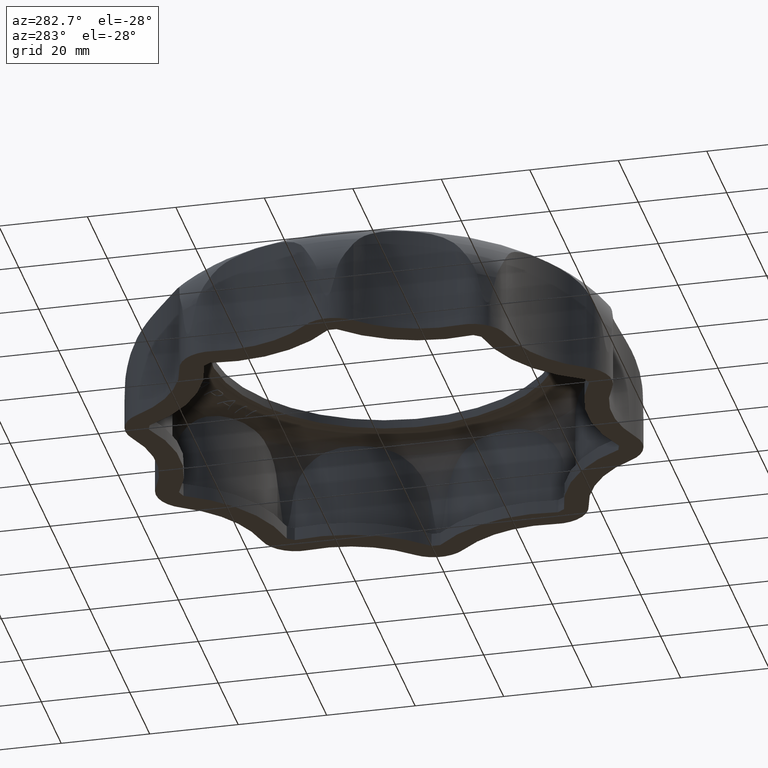
[diagram: clean part render]
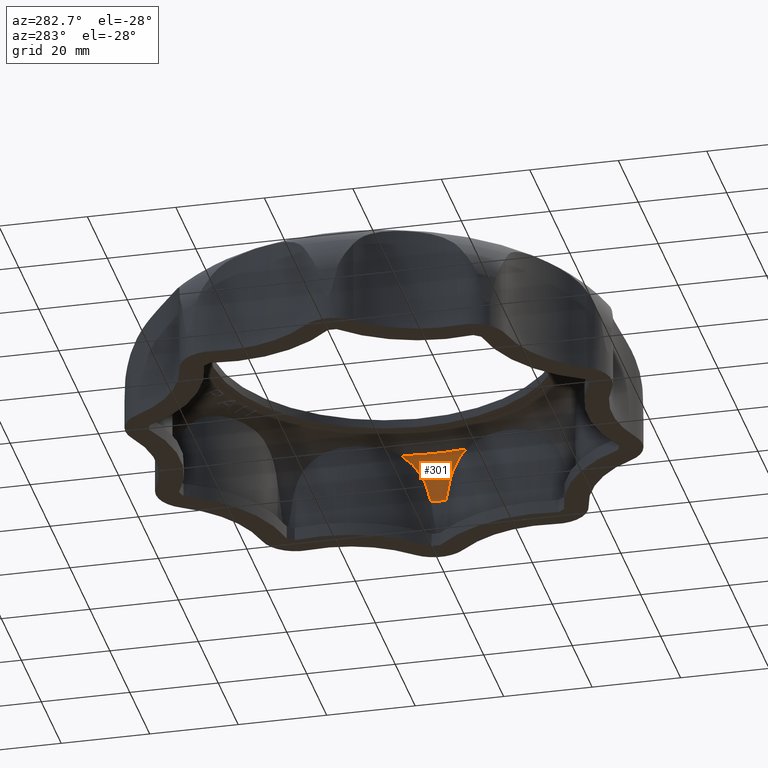
[diagram: same view with one face highlighted and labeled with its STEP entity id]
A machine part, auxiliary view. The second image highlights one B-rep face of the part: STEP entity #301.
In plain terms, the highlighted toroidal blend (fillet) surface has major radius 39.6586 mm and minor (blend) radius 15 mm.
Its self-contained STEP definition (entity closure, byte-faithful):
#301 = ADVANCED_FACE( '', ( #2695 ), #2696, .F. );
#2695 = FACE_OUTER_BOUND( '', #6995, .T. );
#2696 = TOROIDAL_SURFACE( '', #6996, 39.6585505136241, 14.9999993950186 );
#6995 = EDGE_LOOP( '', ( #15203, #15204, #15205, #15206, #15207, #15208 ) );
#6996 = AXIS2_PLACEMENT_3D( '', #15209, #15210, #15211 );
#15203 = ORIENTED_EDGE( '', *, *, #32944, .T. );
#15204 = ORIENTED_EDGE( '', *, *, #30829, .T. );
#15205 = ORIENTED_EDGE( '', *, *, #32942, .T. );
#15206 = ORIENTED_EDGE( '', *, *, #32945, .T. );
#15207 = ORIENTED_EDGE( '', *, *, #32946, .F. );
#15208 = ORIENTED_EDGE( '', *, *, #32947, .T. );
#15209 = CARTESIAN_POINT( '', ( 0.000000000000000, 0.000000000000000, -13.3517235141256 ) );
#15210 = DIRECTION( '', ( 1.89212087375327E-017, -5.82334926349610E-017, 1.00000000000000 ) );
#15211 = DIRECTION( '', ( 0.309016994374947, -0.951056516295154, -6.12303176911189E-017 ) );
#30829 = EDGE_CURVE( '', #38144, #38142, #38145, .T. );
#32942 = EDGE_CURVE( '', #38142, #42152, #42154, .T. );
#32944 = EDGE_CURVE( '', #42156, #38144, #42157, .T. );
#32945 = EDGE_CURVE( '', #42152, #42158, #42159, .T. );
#32946 = EDGE_CURVE( '', #42160, #42158, #42161, .T. );
#32947 = EDGE_CURVE( '', #42160, #42156, #42162, .T. );
#38142 = VERTEX_POINT( '', #51938 );
#38144 = VERTEX_POINT( '', #51961 );
#38145 = CIRCLE( '', #51962, 50.4068543535232 );
#42152 = VERTEX_POINT( '', #63036 );
#42154 = B_SPLINE_CURVE_WITH_KNOTS( '', 3, ( #63039, #63040, #63041, #63042, #63043, #63044, #63045, #63046, #63047, #63048, #63049, #63050, #63051, #63052 ), .UNSPECIFIED., .F., .F., ( 4, 2, 2, 2, 2, 2, 4 ), ( 4.83276726285113E-007, 0.00266775906541964, 0.00400139695976632, 0.00533503485411300, 0.00800231064280636, 0.00933594853715305, 0.0106695864314997 ), .UNSPECIFIED. );
#42156 = VERTEX_POINT( '', #63055 );
#42157 = B_SPLINE_CURVE_WITH_KNOTS( '', 3, ( #63056, #63057, #63058, #63059, #63060, #63061, #63062, #63063, #63064, #63065, #63066, #63067, #63068, #63069, #63070, #63071 ), .UNSPECIFIED., .F., .F., ( 4, 2, 2, 2, 2, 2, 2, 4 ), ( -0.0280709208807227, -0.0267382117984286, -0.0254055027161345, -0.0240727936338404, -0.0227400845515463, -0.0200746663869581, -0.0187419573046640, -0.0174092482223699 ), .UNSPECIFIED. );
#42158 = VERTEX_POINT( '', #63072 );
#42159 = B_SPLINE_CURVE_WITH_KNOTS( '', 3, ( #63073, #63074, #63075, #63076 ), .UNSPECIFIED., .F., .F., ( 4, 4 ), ( 5.99734448363926E-007, 0.00202287024008027 ), .UNSPECIFIED. );
#42160 = VERTEX_POINT( '', #63077 );
#42161 = CIRCLE( '', #63078, 54.6386110000000 );
#42162 = B_SPLINE_CURVE_WITH_KNOTS( '', 3, ( #63079, #63080, #63081, #63082 ), .UNSPECIFIED., .F., .F., ( 4, 4 ), ( 2.00044384218122E-007, 0.00202246061819082 ), .UNSPECIFIED. );
#51938 = CARTESIAN_POINT( '', ( 49.8658247983926, 7.36549271897846, -2.88874370836445 ) );
#51961 = CARTESIAN_POINT( '', ( 49.8658248911492, -7.36549209099597, -2.88874370836445 ) );
#51962 = AXIS2_PLACEMENT_3D( '', #74175, #74176, #74177 );
#63036 = CARTESIAN_POINT( '', ( 54.3648819809542, 2.16276815893542, -10.6209522511898 ) );
#63039 = CARTESIAN_POINT( '', ( 49.8658247983924, 7.36549271897827, -2.88874370836435 ) );
#63040 = CARTESIAN_POINT( '', ( 50.3281143308943, 6.68701165401273, -3.25669885823661 ) );
#63041 = CARTESIAN_POINT( '', ( 50.7937001598586, 6.06360096405892, -3.69014095399745 ) );
#63042 = CARTESIAN_POINT( '', ( 51.4779145001174, 5.21001128053163, -4.45550392247744 ) );
#63043 = CARTESIAN_POINT( '', ( 51.7035932926290, 4.93910715042651, -4.72990289303873 ) );
#63044 = CARTESIAN_POINT( '', ( 52.1463174229710, 4.42498030551874, -5.32148087070966 ) );
#63045 = CARTESIAN_POINT( '', ( 52.3599165622278, 4.18575795038652, -5.63423219473734 ) );
#63046 = CARTESIAN_POINT( '', ( 52.9684807887876, 3.52314706732014, -6.61817100569671 ) );
#63047 = CARTESIAN_POINT( '', ( 53.3334074928721, 3.15209009535560, -7.33699417642356 ) );
#63048 = CARTESIAN_POINT( '', ( 53.7975123603197, 2.69653318837018, -8.51864226597285 ) );
#63049 = CARTESIAN_POINT( '', ( 53.9366502009476, 2.56322966697262, -8.92632961759325 ) );
#63050 = CARTESIAN_POINT( '', ( 54.1780461748601, 2.33520515874141, -9.75850471582423 ) );
#63051 = CARTESIAN_POINT( '', ( 54.2809633805541, 2.23984259461598, -10.1846006505107 ) );
#63052 = CARTESIAN_POINT( '', ( 54.3648819809542, 2.16276815893544, -10.6209522511898 ) );
#63055 = CARTESIAN_POINT( '', ( 54.3648838006558, -2.16276607807733, -10.6209616251759 ) );
#63056 = CARTESIAN_POINT( '', ( 54.3648838006559, -2.16276607807435, -10.6209616251756 ) );
#63057 = CARTESIAN_POINT( '', ( 54.2818169575547, -2.23905820973232, -10.1890373540538 ) );
#63058 = CARTESIAN_POINT( '', ( 54.1780806435821, -2.33517414560739, -9.75869732154596 ) );
#63059 = CARTESIAN_POINT( '', ( 53.9369898845399, -2.56290642899356, -8.92742682337655 ) );
#63060 = CARTESIAN_POINT( '', ( 53.7996438763497, -2.69450009087806, -8.52503264776895 ) );
#63061 = CARTESIAN_POINT( '', ( 53.4943764873627, -2.99402747371349, -7.74589673288541 ) );
#63062 = CARTESIAN_POINT( '', ( 53.3264429721726, -3.16196622438816, -7.36916159243370 ) );
#63063 = CARTESIAN_POINT( '', ( 52.9623189892258, -3.53662664888572, -6.64138101818921 ) );
#63064 = CARTESIAN_POINT( '', ( 52.7658747831181, -3.74373092251917, -6.29051930069122 ) );
#63065 = CARTESIAN_POINT( '', ( 52.1544859969675, -4.40946282381913, -5.30223668150115 ) );
#63066 = CARTESIAN_POINT( '', ( 51.7129620186508, -4.91692863540736, -4.71874079142834 ) );
#63067 = CARTESIAN_POINT( '', ( 51.0218757668964, -5.77886590827511, -3.94522335829701 ) );
#63068 = CARTESIAN_POINT( '', ( 50.7890903339785, -6.08011586984417, -3.70721083085946 ) );
#63069 = CARTESIAN_POINT( '', ( 50.3259072995590, -6.70495365088411, -3.27047377318425 ) );
#63070 = CARTESIAN_POINT( '', ( 50.0948800218770, -7.02931843074663, -3.07105806319904 ) );
#63071 = CARTESIAN_POINT( '', ( 49.8658248911493, -7.36549209099604, -2.88874370836440 ) );
#63072 = CARTESIAN_POINT( '', ( 54.6115472052284, 1.71951268109207, -12.5785678538120 ) );
#63073 = CARTESIAN_POINT( '', ( 54.3648819809542, 2.16276815893557, -10.6209522511899 ) );
#63074 = CARTESIAN_POINT( '', ( 54.4905515948460, 1.96724864720672, -11.2571992085593 ) );
#63075 = CARTESIAN_POINT( '', ( 54.5742820979535, 1.79778175963864, -11.9046304919660 ) );
#63076 = CARTESIAN_POINT( '', ( 54.6115472052287, 1.71951268109108, -12.5785678538118 ) );
#63077 = CARTESIAN_POINT( '', ( 54.6115471799322, -1.71951348449799, -12.5785678538120 ) );
#63078 = AXIS2_PLACEMENT_3D( '', #74585, #74586, #74587 );
#63079 = CARTESIAN_POINT( '', ( 54.6115471799325, -1.71951348449724, -12.5785678538118 ) );
#63080 = CARTESIAN_POINT( '', ( 54.5742822227222, -1.79778224489222, -11.9046332267043 ) );
#63081 = CARTESIAN_POINT( '', ( 54.4905522966125, -1.96724794398215, -11.2572051466600 ) );
#63082 = CARTESIAN_POINT( '', ( 54.3648838006558, -2.16276607807732, -10.6209616251759 ) );
#74175 = CARTESIAN_POINT( '', ( 0.000000000000000, 0.000000000000000, -2.88874370836445 ) );
#74176 = DIRECTION( '', ( 1.89212087375327E-017, -5.82334926349610E-017, 1.00000000000000 ) );
#74177 = DIRECTION( '', ( 0.309016994374947, -0.951056516295154, -6.12303176911189E-017 ) );
#74585 = CARTESIAN_POINT( '', ( 0.000000000000000, 0.000000000000000, -12.5785678538120 ) );
#74586 = DIRECTION( '', ( 1.89212087375327E-017, -5.82334926349610E-017, 1.00000000000000 ) );
#74587 = DIRECTION( '', ( 0.309016994374947, -0.951056516295154, -6.12303176911189E-017 ) );